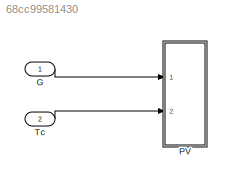
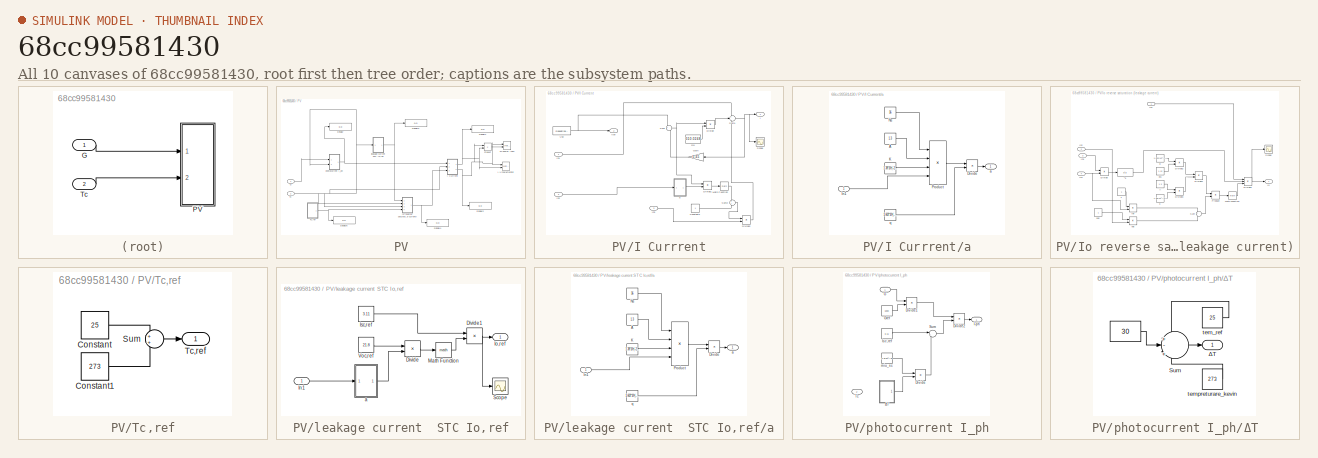
[diagram: thumbnail index - all 10 canvases of the model, root first then tree order]
MODEL slx_68cc99581430
KIND model
CONFIG AbsTol = auto
CONFIG EnableMultiTasking = off
CONFIG FixedStep = auto
CONFIG MaxStep = auto
CONFIG MinStep = auto
CONFIG RelTol = 1e-3
CONFIG SampleTimeConstraint = Unconstrained
CONFIG Solver = VariableStepAuto
CONFIG SolverName = VariableStepAuto
CONFIG StartTime = 0.0
CONFIG StopTime = 10.0
BLOCK [Inport] G
  IconDisplay = Port number
BLOCK [SubSystem] PV
  Ports = [2]
  RequestExecContextInheritance = off
  Variant = off
BLOCK [Display] PV/Display
  Decimation = 1
  Ports = [1]
BLOCK [Display] PV/Display1
  Decimation = 1
  Ports = [1]
BLOCK [Display] PV/Display2
  Decimation = 1
  Ports = [1]
BLOCK [Display] PV/Display3
  Decimation = 1
  Ports = [1]
BLOCK [Display] PV/Display4
  Decimation = 1
  Ports = [1]
BLOCK [Display] PV/Display5
  Decimation = 1
  Ports = [1]
BLOCK [Inport] PV/G
  IconDisplay = Port number
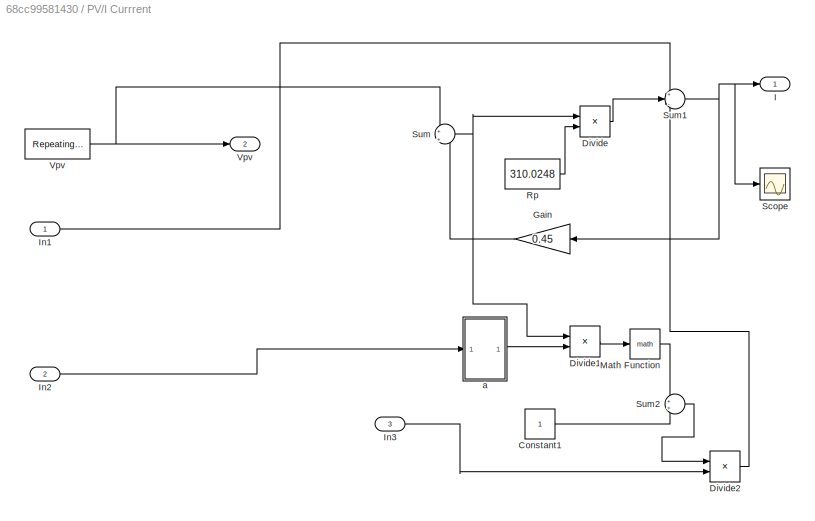
BLOCK [SubSystem] PV/I Currrent
  Ports = [3, 2]
  RequestExecContextInheritance = off
  Variant = off
BLOCK [Constant] PV/I Currrent/Constant1
BLOCK [Product] PV/I Currrent/Divide
  InputSameDT = off
  Inputs = */
  OutDataTypeStr = Inherit: Inherit via internal rule
  Ports = [2, 1]
  RndMeth = Floor
  SaturateOnIntegerOverflow = off
BLOCK [Product] PV/I Currrent/Divide1
  InputSameDT = off
  Inputs = */
  OutDataTypeStr = Inherit: Inherit via internal rule
  Ports = [2, 1]
  RndMeth = Floor
  SaturateOnIntegerOverflow = off
BLOCK [Product] PV/I Currrent/Divide2
  InputSameDT = off
  Inputs = **
  OutDataTypeStr = Inherit: Inherit via internal rule
  Ports = [2, 1]
  RndMeth = Floor
  SaturateOnIntegerOverflow = off
BLOCK [Gain] PV/I Currrent/Gain
  Gain = 0.45
  OutDataTypeStr = Inherit: Inherit via internal rule
  ParamDataTypeStr = Inherit: Inherit via internal rule
  SaturateOnIntegerOverflow = off
BLOCK [Outport] PV/I Currrent/I
  IconDisplay = Port number
BLOCK [Inport] PV/I Currrent/In1
  IconDisplay = Port number
BLOCK [Inport] PV/I Currrent/In2
  IconDisplay = Port number
  Port = 2
BLOCK [Inport] PV/I Currrent/In3
  IconDisplay = Port number
  Port = 3
BLOCK [Math] PV/I Currrent/Math Function
  Ports = [1, 1]
BLOCK [Constant] PV/I Currrent/Rp
  Value = 310.0248
BLOCK [Scope] PV/I Currrent/Scope
  NumInputPorts = 1
  Ports = [1]
  ScopeSpecificationString = Simulink.scopes.TimeScopeBlockCfg('CurrentConfiguration', extmgr.ConfigurationSet(extmgr.Configuration('Core','General UI',true),extmgr.Configuration('Core','Source UI',true),extmgr.Configuration('Sources','WiredSimulink',true,'DataLoggingVariableName','ScopeData2'),extmgr.Configuration('Visuals','Time Domain',true),extmgr.Configuration('Tools','Plot Navigation',true),extmgr.Configuration('Tools',...<+40ch>
BLOCK [Sum] PV/I Currrent/Sum
  IconShape = round
  InputSameDT = off
  Inputs = +|+
  OutDataTypeStr = Inherit: Inherit via internal rule
  Ports = [2, 1]
  SaturateOnIntegerOverflow = off
BLOCK [Sum] PV/I Currrent/Sum1
  IconShape = round
  InputSameDT = off
  Inputs = +|--
  OutDataTypeStr = Inherit: Inherit via internal rule
  Ports = [3, 1]
  SaturateOnIntegerOverflow = off
BLOCK [Sum] PV/I Currrent/Sum2
  IconShape = round
  InputSameDT = off
  Inputs = 2
  OutDataTypeStr = Inherit: Inherit via internal rule
  Ports = [2, 1]
  SaturateOnIntegerOverflow = off
BLOCK [Outport] PV/I Currrent/Vpv
  IconDisplay = Port number
  Port = 2
BLOCK [Reference] PV/I Currrent/Vpv        REF=simulink/Sources/Repeating
Sequence
  Ports = [0, 1]
  SourceBlock = simulink/Sources/Repeating\nSequence
  SourceProductBaseCode = SL
  SourceProductName = Simulink
  SourceType = Repeating table
BLOCK [SubSystem] PV/I Currrent/a
  Ports = [1, 1]
  RequestExecContextInheritance = off
  Variant = off
BLOCK [Constant] PV/I Currrent/a/A
  Value = 1.3
BLOCK [Product] PV/I Currrent/a/Divide
  InputSameDT = off
  Inputs = */
  OutDataTypeStr = Inherit: Inherit via internal rule
  Ports = [2, 1]
  RndMeth = Floor
  SaturateOnIntegerOverflow = off
BLOCK [Inport] PV/I Currrent/a/In1
  IconDisplay = Port number
BLOCK [Constant] PV/I Currrent/a/K
  Value = 1.38*10^(-23)
BLOCK [Constant] PV/I Currrent/a/Ns
  Value = 36
BLOCK [Product] PV/I Currrent/a/Product
  InputSameDT = off
  Inputs = 4
  OutDataTypeStr = Inherit: Inherit via internal rule
  Ports = [4, 1]
  RndMeth = Floor
  SaturateOnIntegerOverflow = off
BLOCK [Outport] PV/I Currrent/a/a
  IconDisplay = Port number
BLOCK [Constant] PV/I Currrent/a/q
  Value = 1.602*10^(-19)
BLOCK [Reference] PV/I-V characteristic  REF=simulink/Sinks/XY Graph
  Ports = [2]
  SourceBlock = simulink/Sinks/XY Graph
  SourceProductBaseCode = SL
  SourceProductName = Simulink
  SourceType = XY scope.
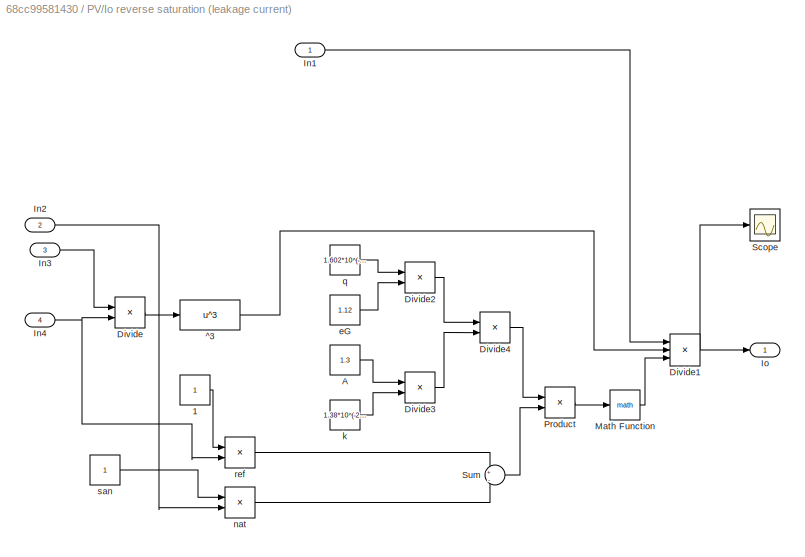
BLOCK [SubSystem] PV/Io reverse saturation (leakage current)
  Ports = [4, 1]
  RequestExecContextInheritance = off
  Variant = off
BLOCK [Constant] PV/Io reverse saturation (leakage current)/1
BLOCK [Constant] PV/Io reverse saturation (leakage current)/A
  Value = 1.3
BLOCK [Product] PV/Io reverse saturation (leakage current)/Divide
  InputSameDT = off
  Inputs = */
  OutDataTypeStr = Inherit: Inherit via internal rule
  Ports = [2, 1]
  RndMeth = Floor
  SaturateOnIntegerOverflow = off
BLOCK [Product] PV/Io reverse saturation (leakage current)/Divide1
  InputSameDT = off
  Inputs = 3
  OutDataTypeStr = Inherit: Inherit via internal rule
  Ports = [3, 1]
  RndMeth = Floor
  SaturateOnIntegerOverflow = off
BLOCK [Product] PV/Io reverse saturation (leakage current)/Divide2
  InputSameDT = off
  OutDataTypeStr = Inherit: Inherit via internal rule
  Ports = [2, 1]
  RndMeth = Floor
  SaturateOnIntegerOverflow = off
BLOCK [Product] PV/Io reverse saturation (leakage current)/Divide3
  InputSameDT = off
  OutDataTypeStr = Inherit: Inherit via internal rule
  Ports = [2, 1]
  RndMeth = Floor
  SaturateOnIntegerOverflow = off
BLOCK [Product] PV/Io reverse saturation (leakage current)/Divide4
  InputSameDT = off
  Inputs = */
  OutDataTypeStr = Inherit: Inherit via internal rule
  Ports = [2, 1]
  RndMeth = Floor
  SaturateOnIntegerOverflow = off
BLOCK [Inport] PV/Io reverse saturation (leakage current)/In1
  IconDisplay = Port number
BLOCK [Inport] PV/Io reverse saturation (leakage current)/In2
  IconDisplay = Port number
  Port = 2
BLOCK [Inport] PV/Io reverse saturation (leakage current)/In3
  IconDisplay = Port number
  Port = 3
BLOCK [Inport] PV/Io reverse saturation (leakage current)/In4
  IconDisplay = Port number
  Port = 4
BLOCK [Outport] PV/Io reverse saturation (leakage current)/Io 
  IconDisplay = Port number
BLOCK [Math] PV/Io reverse saturation (leakage current)/Math Function
  Ports = [1, 1]
BLOCK [Product] PV/Io reverse saturation (leakage current)/Product
  InputSameDT = off
  OutDataTypeStr = Inherit: Inherit via internal rule
  Ports = [2, 1]
  RndMeth = Floor
  SaturateOnIntegerOverflow = off
BLOCK [Scope] PV/Io reverse saturation (leakage current)/Scope
  NumInputPorts = 1
  Ports = [1]
  ScopeSpecificationString = Simulink.scopes.TimeScopeBlockCfg('CurrentConfiguration', extmgr.ConfigurationSet(extmgr.Configuration('Core','General UI',true),extmgr.Configuration('Core','Source UI',true),extmgr.Configuration('Sources','WiredSimulink',true,'DataLoggingVariableName','ScopeData1'),extmgr.Configuration('Visuals','Time Domain',true),extmgr.Configuration('Tools','Plot Navigation',true),extmgr.Configuration('Tools',...<+58ch>
BLOCK [Sum] PV/Io reverse saturation (leakage current)/Sum
  IconShape = round
  InputSameDT = off
  Inputs = +|-
  OutDataTypeStr = Inherit: Inherit via internal rule
  Ports = [2, 1]
  SaturateOnIntegerOverflow = off
BLOCK [Fcn] PV/Io reverse saturation (leakage current)/^3
  Expr = u^3
BLOCK [Constant] PV/Io reverse saturation (leakage current)/eG
  Value = 1.12
BLOCK [Constant] PV/Io reverse saturation (leakage current)/k
  Value = 1.38*10^(-23)
BLOCK [Product] PV/Io reverse saturation (leakage current)/nat
  InputSameDT = off
  Inputs = */
  OutDataTypeStr = Inherit: Inherit via internal rule
  Ports = [2, 1]
  RndMeth = Floor
  SaturateOnIntegerOverflow = off
BLOCK [Constant] PV/Io reverse saturation (leakage current)/q
  Value = 1.602*10^(-19)
BLOCK [Product] PV/Io reverse saturation (leakage current)/ref
  InputSameDT = off
  Inputs = */
  OutDataTypeStr = Inherit: Inherit via internal rule
  Ports = [2, 1]
  RndMeth = Floor
  SaturateOnIntegerOverflow = off
BLOCK [Constant] PV/Io reverse saturation (leakage current)/san
BLOCK [Reference] PV/PV power (Vpv)  REF=simulink/Sinks/XY Graph
  Ports = [2]
  SourceBlock = simulink/Sinks/XY Graph
  SourceProductBaseCode = SL
  SourceProductName = Simulink
  SourceType = XY scope.
BLOCK [Product] PV/Product
  InputSameDT = off
  OutDataTypeStr = Inherit: Inherit via internal rule
  Ports = [2, 1]
  SaturateOnIntegerOverflow = off
BLOCK [Inport] PV/Tc
  IconDisplay = Port number
  Port = 2
BLOCK [SubSystem] PV/Tc,ref
  Ports = [0, 1]
  RequestExecContextInheritance = off
  Variant = off
BLOCK [Constant] PV/Tc,ref/Constant
  Value = 25
BLOCK [Constant] PV/Tc,ref/Constant1
  Value = 273
BLOCK [Sum] PV/Tc,ref/Sum
  IconShape = round
  InputSameDT = off
  Inputs = 2
  OutDataTypeStr = Inherit: Inherit via internal rule
  Ports = [2, 1]
  SaturateOnIntegerOverflow = off
BLOCK [Outport] PV/Tc,ref/Tc,ref
  IconDisplay = Port number
BLOCK [SubSystem] PV/leakage current  STC Io,ref
  Ports = [1, 1]
  RequestExecContextInheritance = off
  Variant = off
BLOCK [Product] PV/leakage current  STC Io,ref/Divide
  InputSameDT = off
  Inputs = */
  OutDataTypeStr = Inherit: Inherit via internal rule
  Ports = [2, 1]
  RndMeth = Floor
  SaturateOnIntegerOverflow = off
BLOCK [Product] PV/leakage current  STC Io,ref/Divide1
  InputSameDT = off
  Inputs = */
  OutDataTypeStr = Inherit: Inherit via internal rule
  Ports = [2, 1]
  RndMeth = Floor
  SaturateOnIntegerOverflow = off
BLOCK [Inport] PV/leakage current  STC Io,ref/In1
  IconDisplay = Port number
BLOCK [Outport] PV/leakage current  STC Io,ref/Io,ref
  IconDisplay = Port number
BLOCK [Constant] PV/leakage current  STC Io,ref/Isc,ref 
  Value = 3.11
BLOCK [Math] PV/leakage current  STC Io,ref/Math Function
  Ports = [1, 1]
BLOCK [Scope] PV/leakage current  STC Io,ref/Scope
  NumInputPorts = 1
  Ports = [1]
  ScopeSpecificationString = Simulink.scopes.TimeScopeBlockCfg('CurrentConfiguration', extmgr.ConfigurationSet(extmgr.Configuration('Core','General UI',true),extmgr.Configuration('Core','Source UI',true),extmgr.Configuration('Sources','WiredSimulink',true),extmgr.Configuration('Visuals','Time Domain',true),extmgr.Configuration('Tools','Plot Navigation',true),extmgr.Configuration('Tools','Measurements',true)),'Version','2017b'...<+1ch>
BLOCK [Constant] PV/leakage current  STC Io,ref/Voc,ref
  Value = 21.8
BLOCK [SubSystem] PV/leakage current  STC Io,ref/a
  Ports = [1, 1]
  RequestExecContextInheritance = off
  Variant = off
BLOCK [Constant] PV/leakage current  STC Io,ref/a/A
  Value = 1.3
BLOCK [Product] PV/leakage current  STC Io,ref/a/Divide
  InputSameDT = off
  Inputs = */
  OutDataTypeStr = Inherit: Inherit via internal rule
  Ports = [2, 1]
  RndMeth = Floor
  SaturateOnIntegerOverflow = off
BLOCK [Inport] PV/leakage current  STC Io,ref/a/In1
  IconDisplay = Port number
BLOCK [Constant] PV/leakage current  STC Io,ref/a/K
  Value = 1.38*10^(-23)
BLOCK [Constant] PV/leakage current  STC Io,ref/a/Ns
  Value = 36
BLOCK [Product] PV/leakage current  STC Io,ref/a/Product
  InputSameDT = off
  Inputs = 4
  OutDataTypeStr = Inherit: Inherit via internal rule
  Ports = [4, 1]
  RndMeth = Floor
  SaturateOnIntegerOverflow = off
BLOCK [Outport] PV/leakage current  STC Io,ref/a/a
  IconDisplay = Port number
BLOCK [Constant] PV/leakage current  STC Io,ref/a/q
  Value = 1.602*10^(-19)
BLOCK [SubSystem] PV/photocurrent I_ph
  Ports = [2, 1]
  RequestExecContextInheritance = off
  Variant = off
BLOCK [Product] PV/photocurrent I_ph/Divide
  InputSameDT = off
  OutDataTypeStr = Inherit: Inherit via internal rule
  Ports = [2, 1]
  RndMeth = Floor
  SaturateOnIntegerOverflow = off
BLOCK [Product] PV/photocurrent I_ph/Divide1
  InputSameDT = off
  Inputs = */
  OutDataTypeStr = Inherit: Inherit via internal rule
  Ports = [2, 1]
  RndMeth = Floor
  SaturateOnIntegerOverflow = off
BLOCK [Product] PV/photocurrent I_ph/Divide2
  InputSameDT = off
  OutDataTypeStr = Inherit: Inherit via internal rule
  Ports = [2, 1]
  RndMeth = Floor
  SaturateOnIntegerOverflow = off
BLOCK [Inport] PV/photocurrent I_ph/G
  IconDisplay = Port number
BLOCK [Constant] PV/photocurrent I_ph/Gref
  Value = 1000
BLOCK [Outport] PV/photocurrent I_ph/I-ph
  IconDisplay = Port number
BLOCK [Constant] PV/photocurrent I_ph/Isc,ref
  Value = 3.11
BLOCK [Sum] PV/photocurrent I_ph/Sum
  IconShape = round
  InputSameDT = off
  Inputs = |++
  OutDataTypeStr = Inherit: Inherit via internal rule
  Ports = [2, 1]
  SaturateOnIntegerOverflow = off
BLOCK [Inport] PV/photocurrent I_ph/Tc
  IconDisplay = Port number
  Port = 2
BLOCK [Constant] PV/photocurrent I_ph/miu_sc
  Value = 1.3*10^(-3)
BLOCK [SubSystem] PV/photocurrent I_ph/ΔT
  Ports = [0, 1]
  RequestExecContextInheritance = off
  Variant = off
BLOCK [Constant] PV/photocurrent I_ph/ΔT/  
  Value = 30
BLOCK [Sum] PV/photocurrent I_ph/ΔT/Sum
  IconShape = round
  InputSameDT = off
  Inputs = +-|+
  OutDataTypeStr = Inherit: Inherit via internal rule
  Ports = [3, 1]
  SaturateOnIntegerOverflow = off
BLOCK [Constant] PV/photocurrent I_ph/ΔT/tem_ref
  Value = 25
BLOCK [Constant] PV/photocurrent I_ph/ΔT/tempreturare_kevin 
  Value = 273
BLOCK [Outport] PV/photocurrent I_ph/ΔT/ΔT
  IconDisplay = Port number
BLOCK [Inport] Tc
  IconDisplay = Port number
  Port = 2
LINE G:1 -> PV:1
LINE PV/G:1 -> PV/photocurrent I_ph:1
LINE PV/I Currrent/Constant1:1 -> PV/I Currrent/Sum2:2
LINE PV/I Currrent/Divide1:1 -> PV/I Currrent/Math Function:1
LINE PV/I Currrent/Divide2:1 -> PV/I Currrent/Sum1:3
LINE PV/I Currrent/Divide:1 -> PV/I Currrent/Sum1:2
LINE PV/I Currrent/Gain:1 -> PV/I Currrent/Sum:2
LINE PV/I Currrent/In1:1 -> PV/I Currrent/Sum1:1
LINE PV/I Currrent/In2:1 -> PV/I Currrent/a:1
LINE PV/I Currrent/In3:1 -> PV/I Currrent/Divide2:2
LINE PV/I Currrent/Math Function:1 -> PV/I Currrent/Sum2:1
LINE PV/I Currrent/Rp:1 -> PV/I Currrent/Divide:2
NET PV/I Currrent/Sum1:1 -> PV/I Currrent/Gain:1, PV/I Currrent/I:1, PV/I Currrent/Scope:1
LINE PV/I Currrent/Sum2:1 -> PV/I Currrent/Divide2:1
NET PV/I Currrent/Sum:1 -> PV/I Currrent/Divide1:1, PV/I Currrent/Divide:1
NET PV/I Currrent/Vpv      :1 -> PV/I Currrent/Sum:1, PV/I Currrent/Vpv:1
LINE PV/I Currrent/a/A:1 -> PV/I Currrent/a/Product:2
LINE PV/I Currrent/a/Divide:1 -> PV/I Currrent/a/a:1
LINE PV/I Currrent/a/In1:1 -> PV/I Currrent/a/Product:4
LINE PV/I Currrent/a/K:1 -> PV/I Currrent/a/Product:3
LINE PV/I Currrent/a/Ns:1 -> PV/I Currrent/a/Product:1
LINE PV/I Currrent/a/Product:1 -> PV/I Currrent/a/Divide:1
LINE PV/I Currrent/a/q:1 -> PV/I Currrent/a/Divide:2
LINE PV/I Currrent/a:1 -> PV/I Currrent/Divide1:2
NET PV/I Currrent:1 -> PV/Display1:1, PV/I-V characteristic:2, PV/Product:2
NET PV/I Currrent:2 -> PV/Display2:1, PV/I-V characteristic:1, PV/PV power (Vpv):1, PV/Product:1
LINE PV/Io reverse saturation (leakage current)/1:1 -> PV/Io reverse saturation (leakage current)/ref:1
LINE PV/Io reverse saturation (leakage current)/A:1 -> PV/Io reverse saturation (leakage current)/Divide3:1
NET PV/Io reverse saturation (leakage current)/Divide1:1 -> PV/Io reverse saturation (leakage current)/Io :1, PV/Io reverse saturation (leakage current)/Scope:1
LINE PV/Io reverse saturation (leakage current)/Divide2:1 -> PV/Io reverse saturation (leakage current)/Divide4:1
LINE PV/Io reverse saturation (leakage current)/Divide3:1 -> PV/Io reverse saturation (leakage current)/Divide4:2
LINE PV/Io reverse saturation (leakage current)/Divide4:1 -> PV/Io reverse saturation (leakage current)/Product:1
LINE PV/Io reverse saturation (leakage current)/Divide:1 -> PV/Io reverse saturation (leakage current)/^3:1
LINE PV/Io reverse saturation (leakage current)/In1:1 -> PV/Io reverse saturation (leakage current)/Divide1:1
LINE PV/Io reverse saturation (leakage current)/In2:1 -> PV/Io reverse saturation (leakage current)/nat:2
LINE PV/Io reverse saturation (leakage current)/In3:1 -> PV/Io reverse saturation (leakage current)/Divide:1
NET PV/Io reverse saturation (leakage current)/In4:1 -> PV/Io reverse saturation (leakage current)/Divide:2, PV/Io reverse saturation (leakage current)/ref:2
LINE PV/Io reverse saturation (leakage current)/Math Function:1 -> PV/Io reverse saturation (leakage current)/Divide1:3
LINE PV/Io reverse saturation (leakage current)/Product:1 -> PV/Io reverse saturation (leakage current)/Math Function:1
LINE PV/Io reverse saturation (leakage current)/Sum:1 -> PV/Io reverse saturation (leakage current)/Product:2
LINE PV/Io reverse saturation (leakage current)/^3:1 -> PV/Io reverse saturation (leakage current)/Divide1:2
LINE PV/Io reverse saturation (leakage current)/eG:1 -> PV/Io reverse saturation (leakage current)/Divide2:2
LINE PV/Io reverse saturation (leakage current)/k:1 -> PV/Io reverse saturation (leakage current)/Divide3:2
LINE PV/Io reverse saturation (leakage current)/nat:1 -> PV/Io reverse saturation (leakage current)/Sum:2
LINE PV/Io reverse saturation (leakage current)/q:1 -> PV/Io reverse saturation (leakage current)/Divide2:1
LINE PV/Io reverse saturation (leakage current)/ref:1 -> PV/Io reverse saturation (leakage current)/Sum:1
LINE PV/Io reverse saturation (leakage current)/san:1 -> PV/Io reverse saturation (leakage current)/nat:1
NET PV/Io reverse saturation (leakage current):1 -> PV/Display4:1, PV/I Currrent:3
LINE PV/Product:1 -> PV/PV power (Vpv):2
LINE PV/Tc,ref/Constant1:1 -> PV/Tc,ref/Sum:2
LINE PV/Tc,ref/Constant:1 -> PV/Tc,ref/Sum:1
LINE PV/Tc,ref/Sum:1 -> PV/Tc,ref/Tc,ref:1
NET PV/Tc,ref:1 -> PV/Display5:1, PV/Io reverse saturation (leakage current):4
NET PV/Tc:1 -> PV/I Currrent:2, PV/Io reverse saturation (leakage current):2, PV/Io reverse saturation (leakage current):3, PV/leakage current  STC Io,ref:1, PV/photocurrent I_ph:2
NET PV/leakage current  STC Io,ref/Divide1:1 -> PV/leakage current  STC Io,ref/Io,ref:1, PV/leakage current  STC Io,ref/Scope:1
LINE PV/leakage current  STC Io,ref/Divide:1 -> PV/leakage current  STC Io,ref/Math Function:1
LINE PV/leakage current  STC Io,ref/In1:1 -> PV/leakage current  STC Io,ref/a:1
LINE PV/leakage current  STC Io,ref/Isc,ref :1 -> PV/leakage current  STC Io,ref/Divide1:1
LINE PV/leakage current  STC Io,ref/Math Function:1 -> PV/leakage current  STC Io,ref/Divide1:2
LINE PV/leakage current  STC Io,ref/Voc,ref:1 -> PV/leakage current  STC Io,ref/Divide:1
LINE PV/leakage current  STC Io,ref/a/A:1 -> PV/leakage current  STC Io,ref/a/Product:2
LINE PV/leakage current  STC Io,ref/a/Divide:1 -> PV/leakage current  STC Io,ref/a/a:1
LINE PV/leakage current  STC Io,ref/a/In1:1 -> PV/leakage current  STC Io,ref/a/Product:4
LINE PV/leakage current  STC Io,ref/a/K:1 -> PV/leakage current  STC Io,ref/a/Product:3
LINE PV/leakage current  STC Io,ref/a/Ns:1 -> PV/leakage current  STC Io,ref/a/Product:1
LINE PV/leakage current  STC Io,ref/a/Product:1 -> PV/leakage current  STC Io,ref/a/Divide:1
LINE PV/leakage current  STC Io,ref/a/q:1 -> PV/leakage current  STC Io,ref/a/Divide:2
LINE PV/leakage current  STC Io,ref/a:1 -> PV/leakage current  STC Io,ref/Divide:2
NET PV/leakage current  STC Io,ref:1 -> PV/Display3:1, PV/Io reverse saturation (leakage current):1
LINE PV/photocurrent I_ph/Divide1:1 -> PV/photocurrent I_ph/Divide2:1
LINE PV/photocurrent I_ph/Divide2:1 -> PV/photocurrent I_ph/I-ph:1
LINE PV/photocurrent I_ph/Divide:1 -> PV/photocurrent I_ph/Sum:2
LINE PV/photocurrent I_ph/G:1 -> PV/photocurrent I_ph/Divide1:1
LINE PV/photocurrent I_ph/Gref:1 -> PV/photocurrent I_ph/Divide1:2
LINE PV/photocurrent I_ph/Isc,ref:1 -> PV/photocurrent I_ph/Sum:1
LINE PV/photocurrent I_ph/Sum:1 -> PV/photocurrent I_ph/Divide2:2
LINE PV/photocurrent I_ph/miu_sc:1 -> PV/photocurrent I_ph/Divide:1
LINE PV/photocurrent I_ph/ΔT/  :1 -> PV/photocurrent I_ph/ΔT/Sum:2
LINE PV/photocurrent I_ph/ΔT/Sum:1 -> PV/photocurrent I_ph/ΔT/ΔT:1
LINE PV/photocurrent I_ph/ΔT/tem_ref:1 -> PV/photocurrent I_ph/ΔT/Sum:1
LINE PV/photocurrent I_ph/ΔT/tempreturare_kevin :1 -> PV/photocurrent I_ph/ΔT/Sum:3
LINE PV/photocurrent I_ph/ΔT:1 -> PV/photocurrent I_ph/Divide:2
NET PV/photocurrent I_ph:1 -> PV/Display:1, PV/I Currrent:1
LINE Tc:1 -> PV:2
note: NET lines group one-source signal fan-out (src -> all destinations, sorted); 1:1 wires keep LINE
